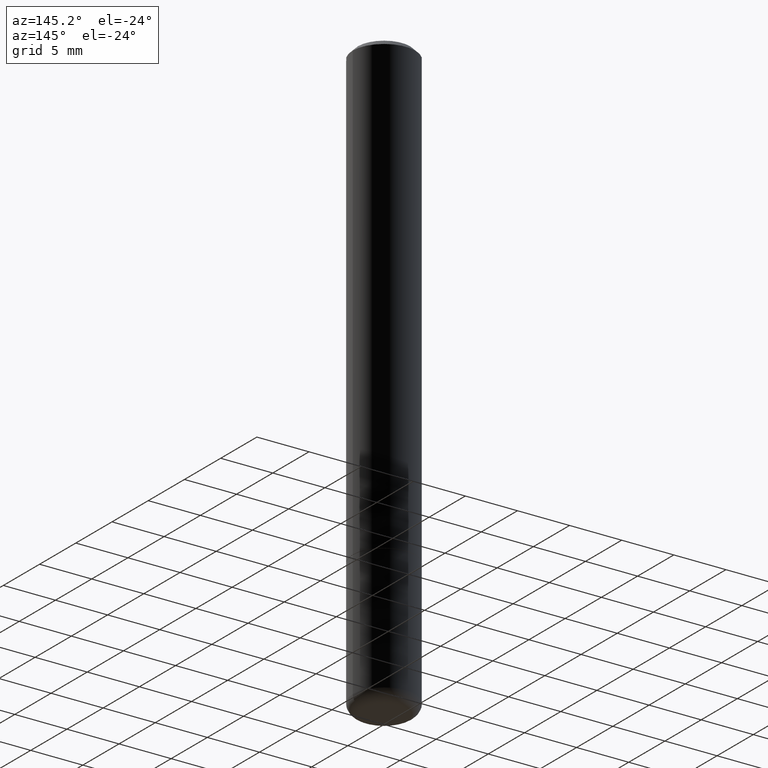
[diagram: clean part render]
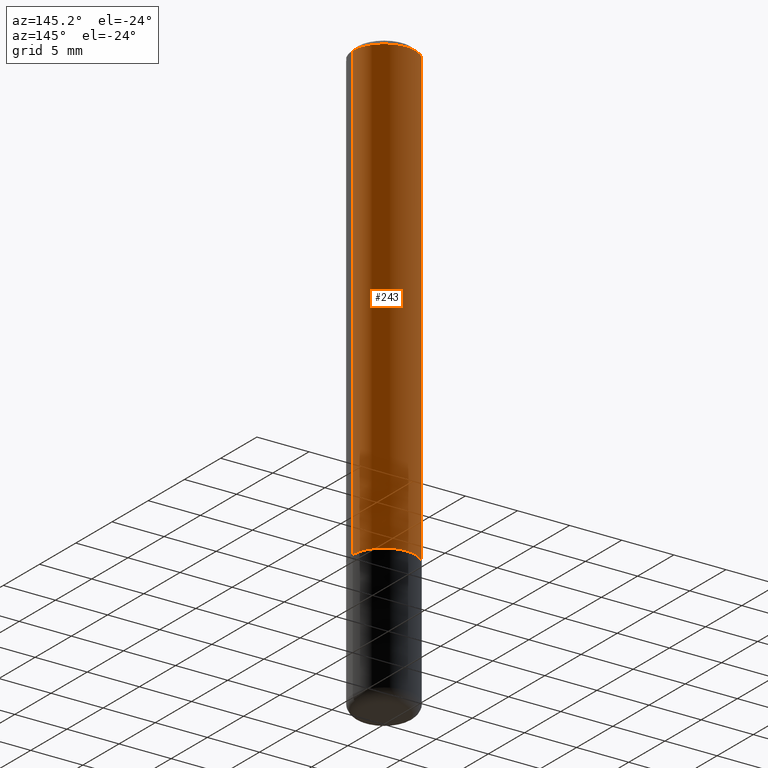
[diagram: same view with one face highlighted and labeled with its STEP entity id]
A machine part, auxiliary view. The second image highlights one B-rep face of the part: STEP entity #243.
In plain terms, the highlighted cylindrical surface (partial cylindrical patch) has radius 2.9997 mm, axis along (-0, 0, 1).
Its self-contained STEP definition (entity closure, byte-faithful):
#13 = LINE ( 'NONE', #300, #256 ) ;
#24 = CIRCLE ( 'NONE', #238, 0.1181000000000002742 ) ;
#25 = AXIS2_PLACEMENT_3D ( 'NONE', #271, #197, #142 ) ;
#29 = VERTEX_POINT ( 'NONE', #253 ) ;
#31 = CARTESIAN_POINT ( 'NONE',  ( -0.1181000000000000383, 7.548582654578851616E-16, -0.02000000000000007674 ) ) ;
#45 = ORIENTED_EDGE ( 'NONE', *, *, #314, .F. ) ;
#49 = EDGE_CURVE ( 'NONE', #107, #294, #24, .T. ) ;
#60 = LINE ( 'NONE', #404, #275 ) ;
#65 = CARTESIAN_POINT ( 'NONE',  ( 0.000000000000000000, 0.000000000000000000, 0.000000000000000000 ) ) ;
#73 = EDGE_LOOP ( 'NONE', ( #186, #306, #45, #195 ) ) ;
#89 = VERTEX_POINT ( 'NONE', #31 ) ;
#107 = VERTEX_POINT ( 'NONE', #286 ) ;
#110 = EDGE_CURVE ( 'NONE', #294, #89, #60, .T. ) ;
#140 = AXIS2_PLACEMENT_3D ( 'NONE', #65, #388, #201 ) ;
#142 = DIRECTION ( 'NONE',  ( 1.000000000000000000, -6.982962677686266711E-15, 0.000000000000000000 ) ) ;
#154 = CARTESIAN_POINT ( 'NONE',  ( 4.233840144148326789E-29, -6.044801641939137282E-15, -1.731299999999999839 ) ) ;
#164 = DIRECTION ( 'NONE',  ( -2.445468806185136597E-29, 3.491481338843145583E-15, 1.000000000000000000 ) ) ;
#186 = ORIENTED_EDGE ( 'NONE', *, *, #49, .T. ) ;
#195 = ORIENTED_EDGE ( 'NONE', *, *, #340, .F. ) ;
#197 = DIRECTION ( 'NONE',  ( -2.445468806185136597E-29, 3.491481338843145583E-15, 1.000000000000000000 ) ) ;
#201 = DIRECTION ( 'NONE',  ( 1.000000000000000000, -6.982962677686266711E-15, 4.876176775795936353E-29 ) ) ;
#238 = AXIS2_PLACEMENT_3D ( 'NONE', #154, #164, #318 ) ;
#243 = ADVANCED_FACE ( 'NONE', ( #266 ), #393, .T. ) ;
#253 = CARTESIAN_POINT ( 'NONE',  ( 0.1181000000000000383, -8.800544403136813305E-16, -0.02000000000000007674 ) ) ;
#256 = VECTOR ( 'NONE', #351, 39.37007874015748143 ) ;
#266 = FACE_OUTER_BOUND ( 'NONE', #73, .T. ) ;
#271 = CARTESIAN_POINT ( 'NONE',  ( 4.890937612370292426E-31, -6.982962677686317493E-17, -0.02000000000000007674 ) ) ;
#275 = VECTOR ( 'NONE', #323, 39.37007874015748143 ) ;
#286 = CARTESIAN_POINT ( 'NONE',  ( 0.1181000000000002742, -6.869489534173887122E-15, -1.731299999999999839 ) ) ;
#294 = VERTEX_POINT ( 'NONE', #360 ) ;
#300 = CARTESIAN_POINT ( 'NONE',  ( 0.1181000000000001493, -8.246878922347491501E-16, 5.758764772215008148E-30 ) ) ;
#306 = ORIENTED_EDGE ( 'NONE', *, *, #110, .T. ) ;
#314 = EDGE_CURVE ( 'NONE', #29, #89, #417, .T. ) ;
#318 = DIRECTION ( 'NONE',  ( 1.000000000000000000, -6.982962677686264344E-15, 0.000000000000000000 ) ) ;
#323 = DIRECTION ( 'NONE',  ( -2.445468806185136877E-29, 3.491481338843145188E-15, 1.000000000000000000 ) ) ;
#340 = EDGE_CURVE ( 'NONE', #107, #29, #13, .T. ) ;
#351 = DIRECTION ( 'NONE',  ( -2.445468806185136877E-29, 3.491481338843145188E-15, 1.000000000000000000 ) ) ;
#360 = CARTESIAN_POINT ( 'NONE',  ( -0.1181000000000002881, -2.218164663425316571E-15, -1.731299999999999839 ) ) ;
#388 = DIRECTION ( 'NONE',  ( -2.445468806185136597E-29, 3.491481338843145583E-15, 1.000000000000000000 ) ) ;
#393 = CYLINDRICAL_SURFACE ( 'NONE', #140, 0.1181000000000001493 ) ;
#404 = CARTESIAN_POINT ( 'NONE',  ( -0.1181000000000001493, 8.391509709326793804E-16, -5.809262341591050790E-30 ) ) ;
#417 = CIRCLE ( 'NONE', #25, 0.1181000000000000383 ) ;